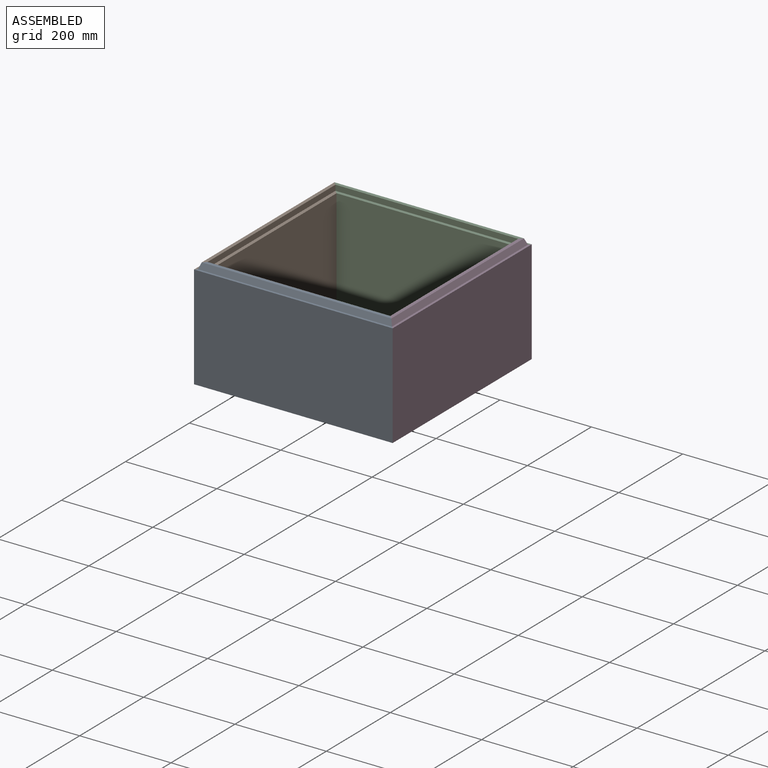
[diagram: assembled view]
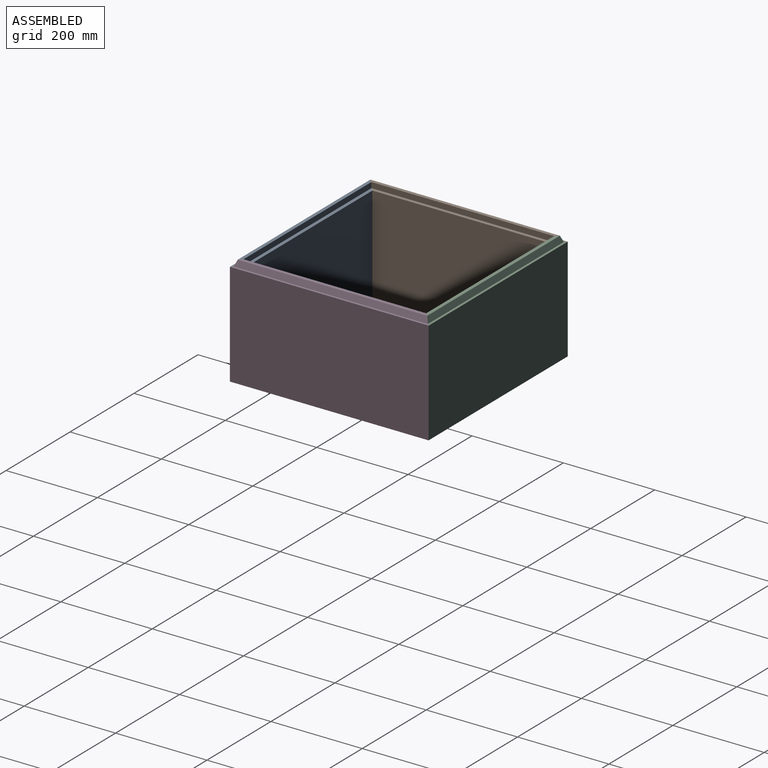
[diagram: assembled view, second angle]
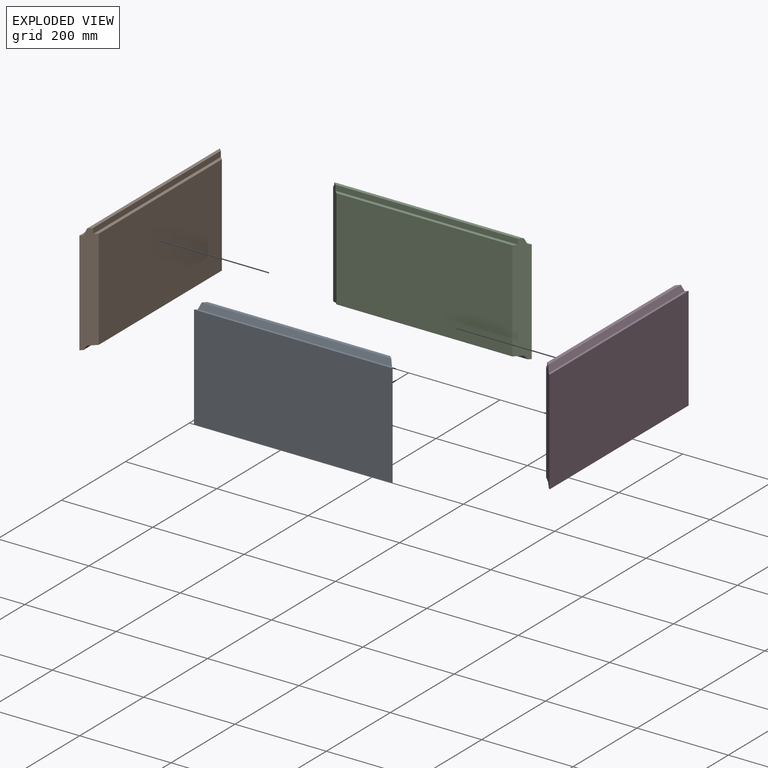
[diagram: exploded view]
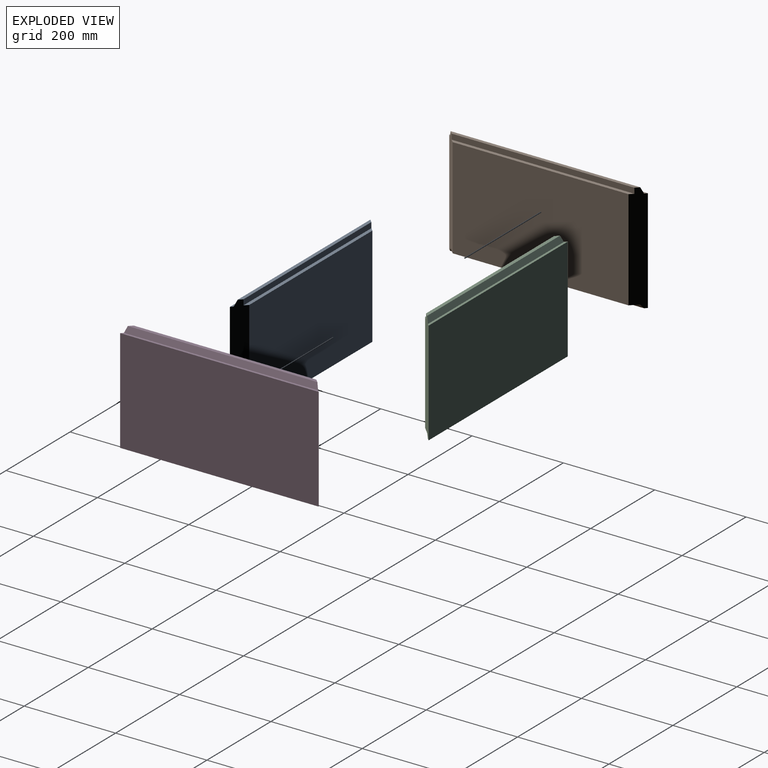
[diagram: exploded view, second angle]
ASSEMBLY  parts=4 mates=3
PART A: 12 faces, bbox 25x435x240 mm
  f0: plane 435x5mm, normal (0,0,-1), area 2150mm2, adj f2,f9,f10,f11
  f1: plane 385x220mm, normal (1,0,0), area 84700mm2, adj f3,f4,f10,f11
  f2: plane 425x8mm, normal (0.85,0,-0.53), area 3962.3mm2, adj f0,f3,f10,f11
  f3: plane 415x15mm, normal (0,0,-1), area 6000mm2, adj f1,f2,f10,f11
  f4: plane 400x7.5mm, normal (0,0,1), area 2943.8mm2, adj f1,f5,f10,f11
  f5: plane 400x12mm, normal (1,0,0), area 4800mm2, adj f4,f6,f10,f11
  f6: plane 415x7.5mm, normal (0,0,1), area 3056.2mm2, adj f5,f7,f10,f11
  f7: plane 425x13mm, normal (-0.93,0,0.36), area 5849.9mm2, adj f6,f8,f10,f11
  f8: plane 435x5mm, normal (0,0,1), area 2150mm2, adj f7,f9,f10,f11
  f9: plane 435x227mm, normal (-1,0,0), area 98745mm2, adj f0,f8,f10,f11
  f10: plane 240x25mm, normal (0.71,-0.71,0), area 8022.1mm2, adj f0,f1,f2,f3,f4,f5,f6,f7
  f11: plane 240x25mm, normal (0.71,0.71,0), area 8022.1mm2, adj f0,f1,f2,f3,f4,f5,f6,f7
PART B: same geometry as A
PART C: same geometry as A
PART D: same geometry as A
PLACE A rot(axis=(0,0,1),90deg) t=(0,0,0)mm
PLACE B at identity fixed
PLACE C rot(axis=(0,0,-1),90deg) t=(0,0,0)mm
PLACE D rot(axis=(0,0,1),180deg) t=(0,0,0)mm
MATE fastened D.f0 <-> A.f0  axis (0,0,-1) through (217.5,-217.5,0)mm
MATE fastened B.f0 <-> A.f0  axis (0,0,1) through (-217.5,-217.5,0)mm
MATE fastened D.f0 <-> C.f0  axis (0,0,-1) through (217.5,217.5,0)mm
